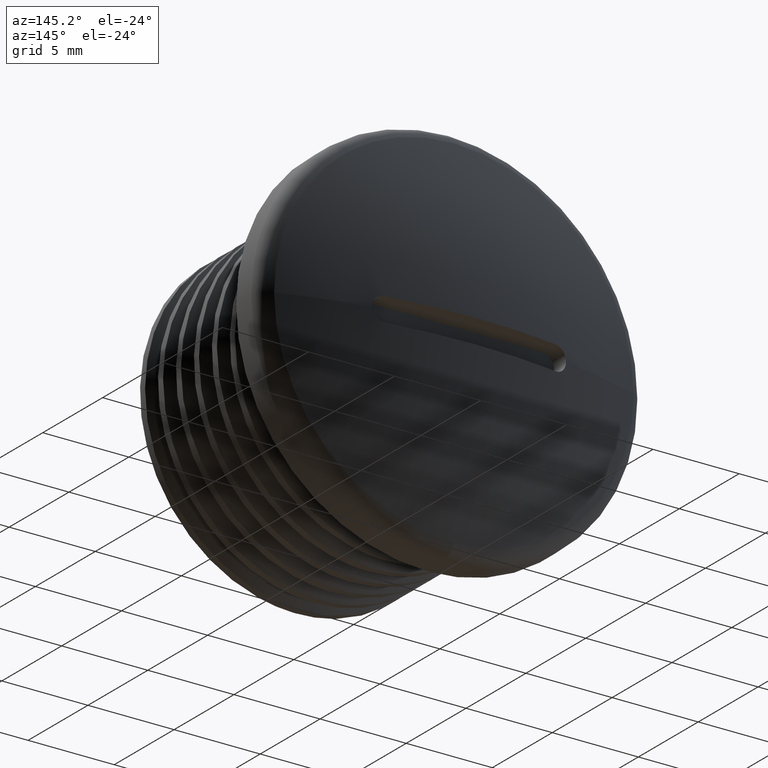
[diagram: clean part render]
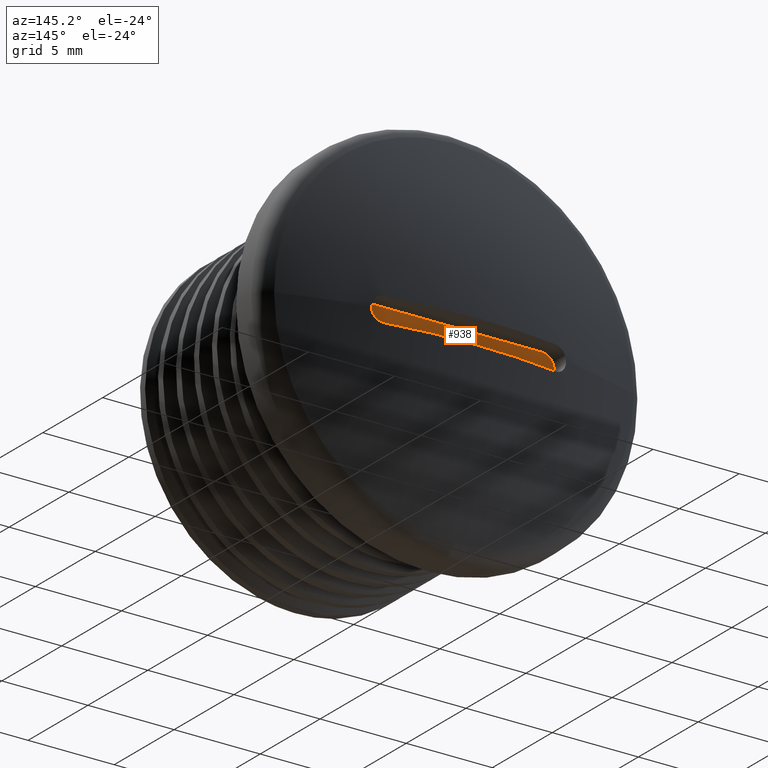
[diagram: same view with one face highlighted and labeled with its STEP entity id]
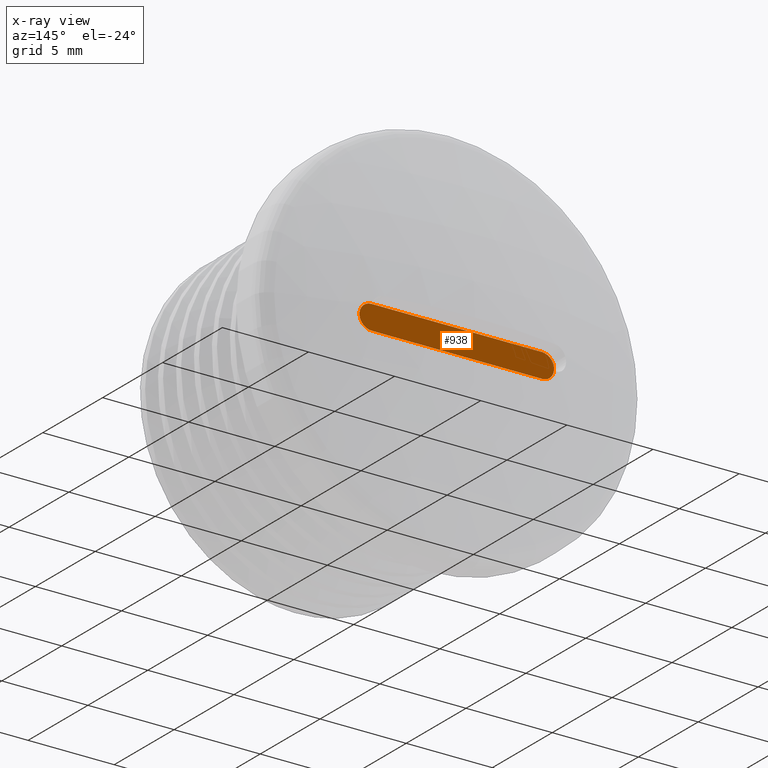
[diagram: x-ray of the same camera — body ghosted, the highlighted face saturated]
A machine part, auxiliary view. The second image highlights one B-rep face of the part: STEP entity #938.
The next image is the same camera in x-ray: the body ghosted, the highlighted face saturated — about 0% of this face is hidden behind the body in this view.
In plain terms, the highlighted planar face has unit normal (0, -1, 0).
Its self-contained STEP definition (entity closure, byte-faithful):
#533 = ORIENTED_EDGE ( 'NONE', *, *, #921, .F. ) ;
#605 = ORIENTED_EDGE ( 'NONE', *, *, #906, .F. ) ;
#608 = ORIENTED_EDGE ( 'NONE', *, *, #920, .F. ) ;
#629 = ORIENTED_EDGE ( 'NONE', *, *, #925, .T. ) ;
#637 = EDGE_LOOP ( 'NONE', ( #608, #605, #533, #629 ) ) ;
#700 = VERTEX_POINT ( 'NONE', #757 ) ;
#706 = VERTEX_POINT ( 'NONE', #762 ) ;
#707 = VERTEX_POINT ( 'NONE', #751 ) ;
#737 = VERTEX_POINT ( 'NONE', #816 ) ;
#751 = CARTESIAN_POINT ( 'NONE',  ( 4.949999999999996600, 13.61249331617843200, 0.6999999999999999600 ) ) ;
#757 = CARTESIAN_POINT ( 'NONE',  ( 4.949999999999996600, 13.61249331617843200, -0.6999999999999999600 ) ) ;
#762 = CARTESIAN_POINT ( 'NONE',  ( -4.950000000000004600, 13.61249331617843200, 0.6999999999999999600 ) ) ;
#816 = CARTESIAN_POINT ( 'NONE',  ( -4.950000000000004600, 13.61249331617843200, -0.6999999999999999600 ) ) ;
#906 = EDGE_CURVE ( 'NONE', #737, #700, #2274, .T. ) ;
#920 = EDGE_CURVE ( 'NONE', #700, #707, #2146, .T. ) ;
#921 = EDGE_CURVE ( 'NONE', #706, #737, #2148, .T. ) ;
#925 = EDGE_CURVE ( 'NONE', #706, #707, #1724, .T. ) ;
#938 = ADVANCED_FACE ( 'NONE', ( #1800 ), #1793, .F. ) ;
#1724 = LINE ( 'NONE', #1777, #2152 ) ;
#1774 = DIRECTION ( 'NONE',  ( 1.000000000000000000, 0.0000000000000000000, 0.0000000000000000000 ) ) ;
#1777 = CARTESIAN_POINT ( 'NONE',  ( -5.650000000000004800, 13.61249331617843200, 0.6999999999999999600 ) ) ;
#1790 = CARTESIAN_POINT ( 'NONE',  ( -5.650000000000004800, 13.61249331617843200, -0.6999999999999999600 ) ) ;
#1793 = PLANE ( 'NONE',  #2161 ) ;
#1795 = DIRECTION ( 'NONE',  ( 0.0000000000000000000, -0.0000000000000000000, -1.000000000000000000 ) ) ;
#1796 = DIRECTION ( 'NONE',  ( 0.0000000000000000000, -1.000000000000000000, 0.0000000000000000000 ) ) ;
#1800 = FACE_OUTER_BOUND ( 'NONE', #637, .T. ) ;
#1912 = DIRECTION ( 'NONE',  ( 0.0000000000000000000, -1.000000000000000000, 0.0000000000000000000 ) ) ;
#1917 = CARTESIAN_POINT ( 'NONE',  ( 4.949999999999996600, 13.61249331617843200, 0.0000000000000000000 ) ) ;
#1918 = CARTESIAN_POINT ( 'NONE',  ( -4.950000000000004600, 13.61249331617843200, 0.0000000000000000000 ) ) ;
#1923 = DIRECTION ( 'NONE',  ( 0.0000000000000000000, 0.0000000000000000000, -1.000000000000000000 ) ) ;
#1924 = DIRECTION ( 'NONE',  ( 0.0000000000000000000, -1.000000000000000000, 0.0000000000000000000 ) ) ;
#1929 = DIRECTION ( 'NONE',  ( 0.0000000000000000000, 0.0000000000000000000, -1.000000000000000000 ) ) ;
#2140 = VECTOR ( 'NONE', #2280, 1000.000000000000000 ) ;
#2146 = CIRCLE ( 'NONE', #2147, 0.6999999999999999600 ) ;
#2147 = AXIS2_PLACEMENT_3D ( 'NONE', #1917, #1912, #1923 ) ;
#2148 = CIRCLE ( 'NONE', #2149, 0.6999999999999999600 ) ;
#2149 = AXIS2_PLACEMENT_3D ( 'NONE', #1918, #1924, #1929 ) ;
#2152 = VECTOR ( 'NONE', #1774, 1000.000000000000000 ) ;
#2161 = AXIS2_PLACEMENT_3D ( 'NONE', #1790, #1796, #1795 ) ;
#2266 = CARTESIAN_POINT ( 'NONE',  ( -5.650000000000004800, 13.61249331617843200, -0.6999999999999999600 ) ) ;
#2274 = LINE ( 'NONE', #2266, #2140 ) ;
#2280 = DIRECTION ( 'NONE',  ( 1.000000000000000000, 0.0000000000000000000, 0.0000000000000000000 ) ) ;